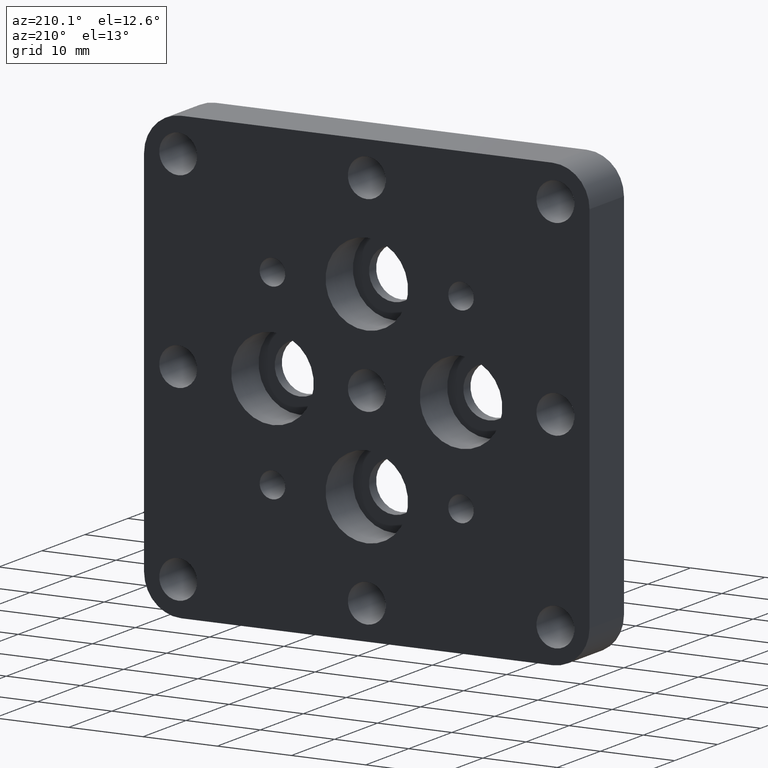
[diagram: clean part render]
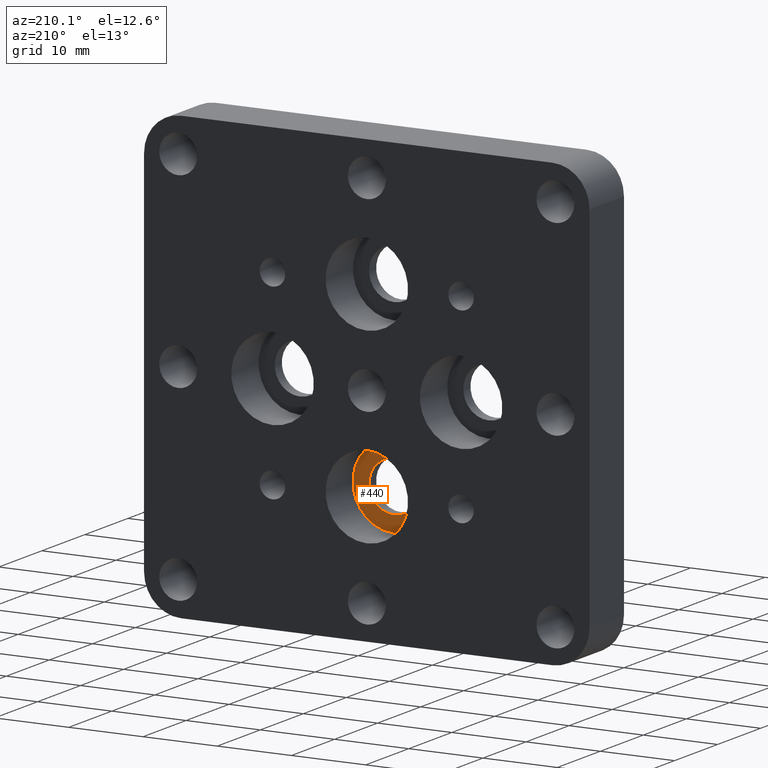
[diagram: same view with one face highlighted and labeled with its STEP entity id]
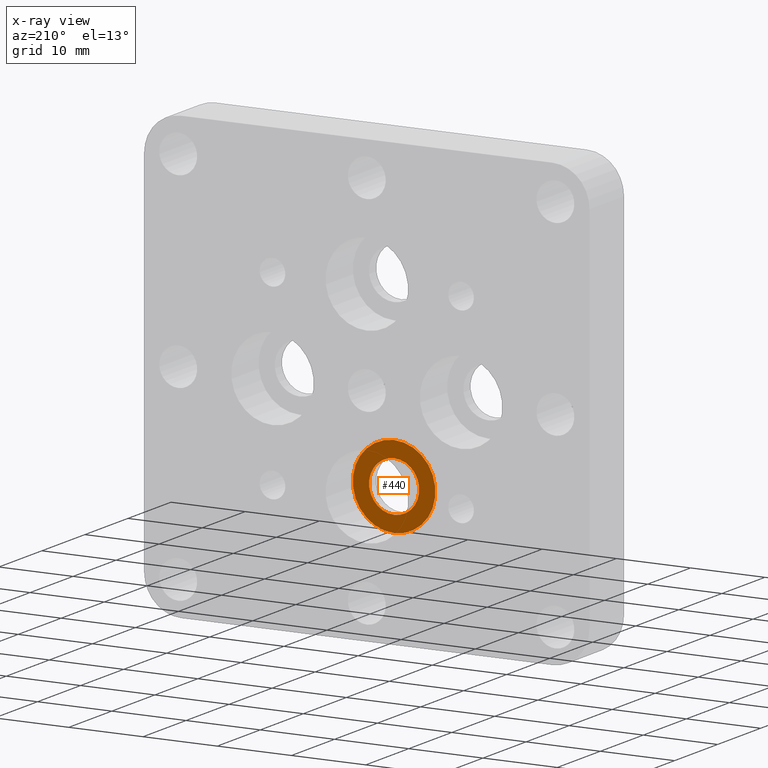
[diagram: x-ray of the same camera — body ghosted, the highlighted face saturated]
A machine part, auxiliary view. The second image highlights one B-rep face of the part: STEP entity #440.
The next image is the same camera in x-ray: the body ghosted, the highlighted face saturated — about 0% of this face is hidden behind the body in this view.
In plain terms, the highlighted planar face has unit normal (0, -1, 0).
Its self-contained STEP definition (entity closure, byte-faithful):
#4 = DIRECTION ( 'NONE',  ( 0.0000000000000000000, 0.0000000000000000000, 1.000000000000000000 ) ) ;
#9 = DIRECTION ( 'NONE',  ( 0.0000000000000000000, -1.000000000000000000, 0.0000000000000000000 ) ) ;
#51 = DIRECTION ( 'NONE',  ( 0.0000000000000000000, 0.0000000000000000000, 1.000000000000000000 ) ) ;
#56 = EDGE_CURVE ( 'NONE', #416, #257, #131, .T. ) ;
#105 = CARTESIAN_POINT ( 'NONE',  ( 0.0000000000000000000, 1.650000000000000400, -7.143750000000001600 ) ) ;
#131 = CIRCLE ( 'NONE', #938, 5.556249999999997700 ) ;
#140 = EDGE_LOOP ( 'NONE', ( #1759, #283 ) ) ;
#170 = PLANE ( 'NONE',  #1101 ) ;
#217 = CARTESIAN_POINT ( 'NONE',  ( 0.0000000000000000000, 1.650000000000000400, -12.69999999999999900 ) ) ;
#257 = VERTEX_POINT ( 'NONE', #105 ) ;
#283 = ORIENTED_EDGE ( 'NONE', *, *, #56, .T. ) ;
#316 = CARTESIAN_POINT ( 'NONE',  ( 0.0000000000000000000, 1.650000000000000400, -12.69999999999999900 ) ) ;
#367 = FACE_BOUND ( 'NONE', #451, .T. ) ;
#374 = AXIS2_PLACEMENT_3D ( 'NONE', #217, #1427, #1720 ) ;
#416 = VERTEX_POINT ( 'NONE', #1539 ) ;
#440 = ADVANCED_FACE ( 'NONE', ( #367, #1526 ), #170, .F. ) ;
#451 = EDGE_LOOP ( 'NONE', ( #940, #1927 ) ) ;
#583 = DIRECTION ( 'NONE',  ( -0.0000000000000000000, 1.000000000000000000, -0.0000000000000000000 ) ) ;
#692 = EDGE_CURVE ( 'NONE', #257, #416, #874, .T. ) ;
#740 = CARTESIAN_POINT ( 'NONE',  ( 0.0000000000000000000, 1.650000000000000400, -12.69999999999999900 ) ) ;
#746 = DIRECTION ( 'NONE',  ( -0.0000000000000000000, 1.000000000000000000, -0.0000000000000000000 ) ) ;
#802 = CARTESIAN_POINT ( 'NONE',  ( 0.0000000000000000000, 1.650000000000000400, -12.69999999999999900 ) ) ;
#860 = AXIS2_PLACEMENT_3D ( 'NONE', #740, #583, #4 ) ;
#874 = CIRCLE ( 'NONE', #374, 5.556249999999997700 ) ;
#937 = DIRECTION ( 'NONE',  ( -0.0000000000000000000, 1.000000000000000000, -0.0000000000000000000 ) ) ;
#938 = AXIS2_PLACEMENT_3D ( 'NONE', #802, #937, #51 ) ;
#940 = ORIENTED_EDGE ( 'NONE', *, *, #1448, .F. ) ;
#952 = AXIS2_PLACEMENT_3D ( 'NONE', #316, #746, #1023 ) ;
#1023 = DIRECTION ( 'NONE',  ( 0.0000000000000000000, 0.0000000000000000000, 1.000000000000000000 ) ) ;
#1101 = AXIS2_PLACEMENT_3D ( 'NONE', #1371, #9, #1194 ) ;
#1111 = CARTESIAN_POINT ( 'NONE',  ( 4.137101816879588000E-016, 1.650000000000000400, -16.07819999999999900 ) ) ;
#1194 = DIRECTION ( 'NONE',  ( 0.0000000000000000000, -0.0000000000000000000, -1.000000000000000000 ) ) ;
#1234 = VERTEX_POINT ( 'NONE', #1111 ) ;
#1297 = CARTESIAN_POINT ( 'NONE',  ( 0.0000000000000000000, 1.650000000000000400, -9.321800000000001400 ) ) ;
#1303 = VERTEX_POINT ( 'NONE', #1297 ) ;
#1369 = CIRCLE ( 'NONE', #860, 3.378199999999997900 ) ;
#1371 = CARTESIAN_POINT ( 'NONE',  ( 3.378199999999998800, 1.650000000000000400, -12.69999999999999900 ) ) ;
#1406 = EDGE_CURVE ( 'NONE', #1234, #1303, #1369, .T. ) ;
#1427 = DIRECTION ( 'NONE',  ( -0.0000000000000000000, 1.000000000000000000, -0.0000000000000000000 ) ) ;
#1448 = EDGE_CURVE ( 'NONE', #1303, #1234, #1520, .T. ) ;
#1520 = CIRCLE ( 'NONE', #952, 3.378199999999997900 ) ;
#1526 = FACE_OUTER_BOUND ( 'NONE', #140, .T. ) ;
#1539 = CARTESIAN_POINT ( 'NONE',  ( 6.804443777762479200E-016, 1.650000000000000400, -18.25624999999999800 ) ) ;
#1720 = DIRECTION ( 'NONE',  ( 0.0000000000000000000, 0.0000000000000000000, 1.000000000000000000 ) ) ;
#1759 = ORIENTED_EDGE ( 'NONE', *, *, #692, .T. ) ;
#1927 = ORIENTED_EDGE ( 'NONE', *, *, #1406, .F. ) ;